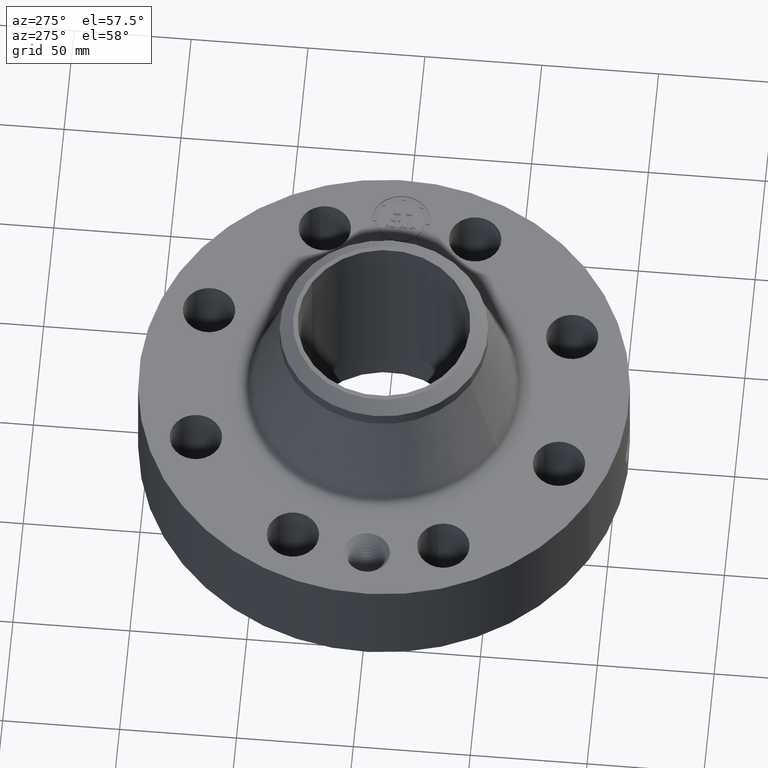
[diagram: clean part render]
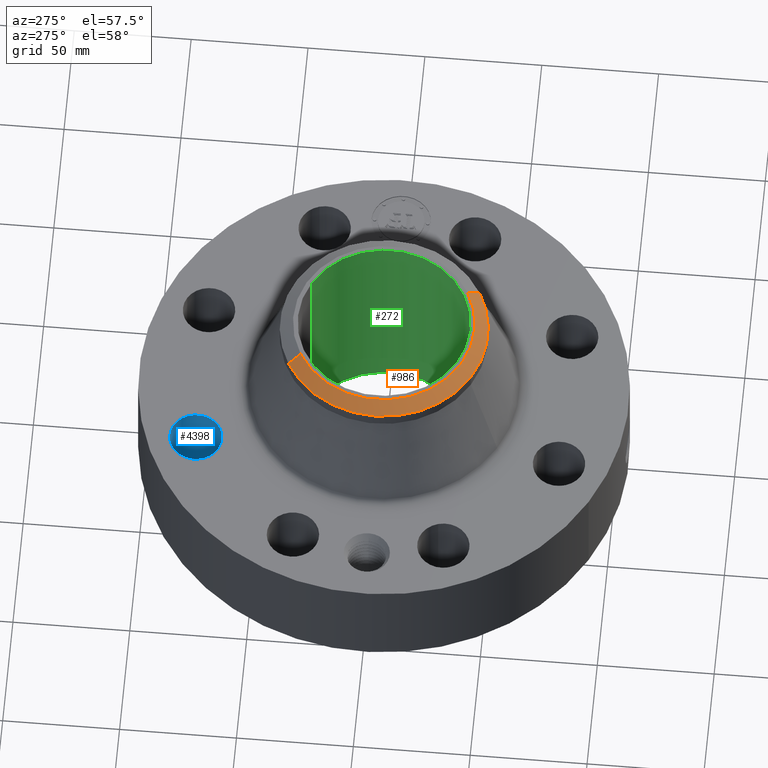
[diagram: same view with three faces highlighted in distinct colors, each labeled with its STEP entity id]
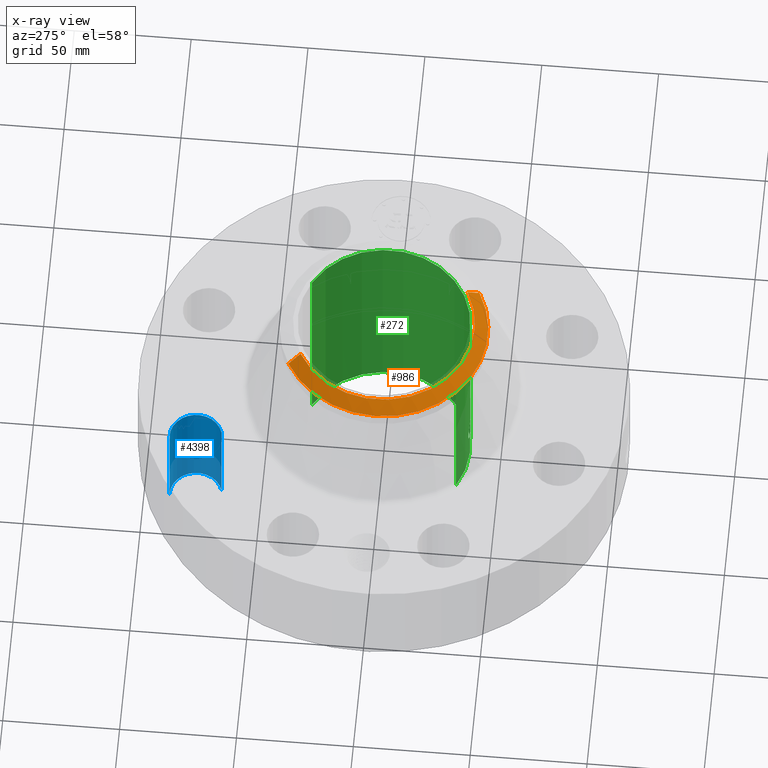
[diagram: x-ray of the same camera — body ghosted, the three highlighted faces saturated]
A machine part, auxiliary view with three faces highlighted in distinct colors.
The next image is the same camera in x-ray (body ghosted, the three faces saturated) — at least one of them is partly hidden behind the body in this view.
Their STEP definitions:

[orange] entity #986 — the highlighted conical surface has half-angle 52.5 deg.
#524=AXIS2_PLACEMENT_3D('Circle Axis2P3D',#522,#523,$) ;
#951=AXIS2_PLACEMENT_3D('Cone Axis2P3D',#948,#949,#950) ;
#969=AXIS2_PLACEMENT_3D('Circle Axis2P3D',#967,#968,$) ;
#976=AXIS2_PLACEMENT_3D('Circle Axis2P3D',#974,#975,$) ;
#517=CARTESIAN_POINT('Vertex',(0.732917073389,-1.34159570387,3.81200000002)) ;
#519=CARTESIAN_POINT('Vertex',(-0.732917073389,1.34159570387,3.81200000002)) ;
#522=CARTESIAN_POINT('Axis2P3D Location',(0.,0.,3.81200000002)) ;
#948=CARTESIAN_POINT('Axis2P3D Location',(0.,0.,3.81200000002)) ;
#953=CARTESIAN_POINT('Line Origine',(0.785955882975,-1.43868259359,3.72711067575)) ;
#957=CARTESIAN_POINT('Vertex',(0.838994692561,-1.53576948331,3.64222135149)) ;
#960=CARTESIAN_POINT('Line Origine',(-0.785955882975,1.43868259359,3.72711067575)) ;
#964=CARTESIAN_POINT('Vertex',(-0.838994692561,1.53576948331,3.64222135149)) ;
#967=CARTESIAN_POINT('Axis2P3D Location',(0.,0.,3.64222135149)) ;
#971=CARTESIAN_POINT('Vertex',(-0.838994692561,-1.53576948331,3.64222135149)) ;
#974=CARTESIAN_POINT('Axis2P3D Location',(0.,0.,3.64222135149)) ;
#523=DIRECTION('Axis2P3D Direction',(0.,0.,-0.0393700787402)) ;
#949=DIRECTION('Axis2P3D Direction',(-0.,-0.,-0.0393700787402)) ;
#950=DIRECTION('Axis2P3D XDirection',(-0.0188750212049,0.0345504945626,0.)) ;
#954=DIRECTION('Vector Direction',(0.014974561121,-0.02741075027,-0.023966985394)) ;
#961=DIRECTION('Vector Direction',(-0.014974561121,0.02741075027,-0.023966985394)) ;
#968=DIRECTION('Axis2P3D Direction',(0.,0.,-0.0393700787402)) ;
#975=DIRECTION('Axis2P3D Direction',(0.,0.,-0.0393700787402)) ;
#955=VECTOR('Line Direction',#954,0.0393700787402) ;
#962=VECTOR('Line Direction',#961,0.0393700787402) ;
#980=ORIENTED_EDGE('',*,*,#959,.F.) ;
#981=ORIENTED_EDGE('',*,*,#526,.F.) ;
#982=ORIENTED_EDGE('',*,*,#966,.T.) ;
#983=ORIENTED_EDGE('',*,*,#973,.T.) ;
#984=ORIENTED_EDGE('',*,*,#978,.F.) ;
#986=ADVANCED_FACE('PartBody',(#985),#952,.T.) ;
#525=CIRCLE('generated circle',#524,1.52874015749) ;
#970=CIRCLE('generated circle',#969,1.75000000001) ;
#977=CIRCLE('generated circle',#976,1.75000000001) ;
#952=CONICAL_SURFACE('Cone',#951,1.52874015749,0.916297857297) ;
#526=EDGE_CURVE('',#520,#518,#525,.F.) ;
#959=EDGE_CURVE('',#518,#958,#956,.T.) ;
#966=EDGE_CURVE('',#520,#965,#963,.T.) ;
#973=EDGE_CURVE('',#965,#972,#970,.F.) ;
#978=EDGE_CURVE('',#958,#972,#977,.T.) ;
#979=EDGE_LOOP('',(#980,#981,#982,#983,#984)) ;
#985=FACE_OUTER_BOUND('',#979,.T.) ;
#956=LINE('Line',#953,#955) ;
#963=LINE('Line',#960,#962) ;
#518=VERTEX_POINT('',#517) ;
#520=VERTEX_POINT('',#519) ;
#958=VERTEX_POINT('',#957) ;
#965=VERTEX_POINT('',#964) ;
#972=VERTEX_POINT('',#971) ;

[blue] entity #4398 — the highlighted cylindrical surface (edge-blend (fillet) strip) has radius 11.176 mm, axis along (0, 0, -1).
#3048=AXIS2_PLACEMENT_3D('Circle Axis2P3D',#3046,#3047,$) ;
#4359=AXIS2_PLACEMENT_3D('Cylinder Axis2P3D',#4356,#4357,#4358) ;
#4389=AXIS2_PLACEMENT_3D('Circle Axis2P3D',#4387,#4388,$) ;
#3046=CARTESIAN_POINT('Axis2P3D Location',(-1.26668216113,3.05804125262,1.81200000001)) ;
#3050=CARTESIAN_POINT('Vertex',(-1.39055955484,3.48024308982,1.81200000001)) ;
#3052=CARTESIAN_POINT('Vertex',(-1.14280476743,2.63583941543,1.81200000001)) ;
#4356=CARTESIAN_POINT('Axis2P3D Location',(-1.26668216113,3.05804125262,1.80806299213)) ;
#4361=CARTESIAN_POINT('Line Origine',(-1.14280476743,2.63583941543,0.906000000004)) ;
#4365=CARTESIAN_POINT('Vertex',(-1.14280476743,2.63583941543,0.)) ;
#4372=CARTESIAN_POINT('Vertex',(-1.39055955484,3.48024308982,0.)) ;
#4375=CARTESIAN_POINT('Line Origine',(-1.39055955484,3.48024308982,0.906000000004)) ;
#4387=CARTESIAN_POINT('Axis2P3D Location',(-1.26668216113,3.05804125262,0.)) ;
#3047=DIRECTION('Axis2P3D Direction',(0.,0.,-0.0393700787402)) ;
#4357=DIRECTION('Axis2P3D Direction',(0.,0.,-0.0393700787402)) ;
#4358=DIRECTION('Axis2P3D XDirection',(-0.0110842335096,0.0377775444876,0.)) ;
#4362=DIRECTION('Vector Direction',(0.,0.,-0.0393700787402)) ;
#4376=DIRECTION('Vector Direction',(0.,0.,-0.0393700787402)) ;
#4388=DIRECTION('Axis2P3D Direction',(0.,0.,-0.0393700787402)) ;
#4363=VECTOR('Line Direction',#4362,0.0393700787402) ;
#4377=VECTOR('Line Direction',#4376,0.0393700787402) ;
#4393=ORIENTED_EDGE('',*,*,#4379,.F.) ;
#4394=ORIENTED_EDGE('',*,*,#4391,.T.) ;
#4395=ORIENTED_EDGE('',*,*,#4367,.T.) ;
#4396=ORIENTED_EDGE('',*,*,#3054,.F.) ;
#4398=ADVANCED_FACE('PartBody',(#4397),#4360,.F.) ;
#3049=CIRCLE('generated circle',#3048,0.440000000002) ;
#4390=CIRCLE('generated circle',#4389,0.440000000002) ;
#4360=CYLINDRICAL_SURFACE('generated cylinder',#4359,0.440000000002) ;
#3054=EDGE_CURVE('',#3051,#3053,#3049,.T.) ;
#4367=EDGE_CURVE('',#4366,#3053,#4364,.F.) ;
#4379=EDGE_CURVE('',#4373,#3051,#4378,.F.) ;
#4391=EDGE_CURVE('',#4373,#4366,#4390,.T.) ;
#4392=EDGE_LOOP('',(#4393,#4394,#4395,#4396)) ;
#4397=FACE_OUTER_BOUND('',#4392,.T.) ;
#4364=LINE('Line',#4361,#4363) ;
#4378=LINE('Line',#4375,#4377) ;
#3051=VERTEX_POINT('',#3050) ;
#3053=VERTEX_POINT('',#3052) ;
#4366=VERTEX_POINT('',#4365) ;
#4373=VERTEX_POINT('',#4372) ;

[green] entity #272 — the highlighted cylindrical surface (partial cylindrical patch) has radius 36.83 mm, axis along (0, 0, -1).
#232=AXIS2_PLACEMENT_3D('Cylinder Axis2P3D',#229,#230,#231) ;
#236=AXIS2_PLACEMENT_3D('Circle Axis2P3D',#234,#235,$) ;
#252=AXIS2_PLACEMENT_3D('Circle Axis2P3D',#250,#251,$) ;
#81=CARTESIAN_POINT('Control Point',(0.164546730355,-1.44063332377,0.660107711514)) ;
#82=CARTESIAN_POINT('Control Point',(0.153731070917,-1.44186867031,0.640309779711)) ;
#83=CARTESIAN_POINT('Control Point',(0.139944062613,-1.44334057186,0.622149863834)) ;
#84=CARTESIAN_POINT('Control Point',(0.12351022085,-1.44489924183,0.606210656527)) ;
#85=CARTESIAN_POINT('Control Point',(0.0771457999691,-1.44849158983,0.573196886421)) ;
#86=CARTESIAN_POINT('Control Point',(0.0211415929518,-1.45046277825,0.559002229905)) ;
#87=CARTESIAN_POINT('Control Point',(-0.0138878046291,-1.45055905133,0.558336349551)) ;
#88=CARTESIAN_POINT('Control Point',(-0.0704179716289,-1.44885595419,0.570406316135)) ;
#89=CARTESIAN_POINT('Control Point',(-0.118016274521,-1.4453687748,0.601663420161)) ;
#90=CARTESIAN_POINT('Control Point',(-0.135050970337,-1.44381724885,0.616987425155)) ;
#91=CARTESIAN_POINT('Control Point',(-0.174424580989,-1.43973531707,0.665004019663)) ;
#92=CARTESIAN_POINT('Control Point',(-0.19222728289,-1.43719598434,0.725976487032)) ;
#93=CARTESIAN_POINT('Control Point',(-0.192994747,-1.43707884691,0.766812208901)) ;
#94=CARTESIAN_POINT('Control Point',(-0.183180576886,-1.43850499696,0.805783261209)) ;
#95=CARTESIAN_POINT('Control Point',(-0.164546730355,-1.44063332377,0.839892288492)) ;
#96=CARTESIAN_POINT('Vertex',(0.164546730355,-1.44063332377,0.660107711514)) ;
#98=CARTESIAN_POINT('Vertex',(-0.164546730355,-1.44063332377,0.839892288492)) ;
#206=CARTESIAN_POINT('Control Point',(-0.164546730355,-1.44063332377,0.839892288492)) ;
#207=CARTESIAN_POINT('Control Point',(-0.153731070915,-1.44186867031,0.859690220299)) ;
#208=CARTESIAN_POINT('Control Point',(-0.139944062607,-1.44334057186,0.877850136179)) ;
#209=CARTESIAN_POINT('Control Point',(-0.123510220856,-1.44489924183,0.893789343474)) ;
#210=CARTESIAN_POINT('Control Point',(-0.0771457999748,-1.44849158983,0.926803113582)) ;
#211=CARTESIAN_POINT('Control Point',(-0.0211415929558,-1.45046277824,0.940997770099)) ;
#212=CARTESIAN_POINT('Control Point',(0.013887804635,-1.45055905133,0.941663650454)) ;
#213=CARTESIAN_POINT('Control Point',(0.0704179716278,-1.44885595418,0.92959368387)) ;
#214=CARTESIAN_POINT('Control Point',(0.118016274515,-1.4453687748,0.898336579849)) ;
#215=CARTESIAN_POINT('Control Point',(0.135050970343,-1.44381724885,0.883012574844)) ;
#216=CARTESIAN_POINT('Control Point',(0.174424580992,-1.43973531707,0.834995980336)) ;
#217=CARTESIAN_POINT('Control Point',(0.192227282892,-1.43719598434,0.774023512967)) ;
#218=CARTESIAN_POINT('Control Point',(0.192994747001,-1.43707884691,0.733187791111)) ;
#219=CARTESIAN_POINT('Control Point',(0.183180576887,-1.43850499696,0.694216738799)) ;
#220=CARTESIAN_POINT('Control Point',(0.164546730355,-1.44063332377,0.660107711514)) ;
#229=CARTESIAN_POINT('Axis2P3D Location',(0.,0.,1.90600000001)) ;
#234=CARTESIAN_POINT('Axis2P3D Location',(0.,0.,3.81200000002)) ;
#238=CARTESIAN_POINT('Vertex',(0.695167030979,1.27249471475,3.81200000002)) ;
#240=CARTESIAN_POINT('Vertex',(-0.695167030979,-1.27249471475,3.81200000002)) ;
#243=CARTESIAN_POINT('Line Origine',(0.695167030979,1.27249471475,1.90600000001)) ;
#247=CARTESIAN_POINT('Vertex',(0.695167030979,1.27249471475,-7.55301333288E-015)) ;
#250=CARTESIAN_POINT('Axis2P3D Location',(0.,0.,-7.83275456743E-015)) ;
#254=CARTESIAN_POINT('Vertex',(-0.695167030979,-1.27249471475,-7.55301333288E-015)) ;
#257=CARTESIAN_POINT('Line Origine',(-0.695167030979,-1.27249471475,1.90600000001)) ;
#230=DIRECTION('Axis2P3D Direction',(0.,0.,-0.0393700787402)) ;
#231=DIRECTION('Axis2P3D XDirection',(-0.0188750212049,-0.0345504945626,0.)) ;
#235=DIRECTION('Axis2P3D Direction',(0.,0.,-0.0393700787402)) ;
#244=DIRECTION('Vector Direction',(0.,0.,-0.0393700787402)) ;
#251=DIRECTION('Axis2P3D Direction',(0.,0.,-0.0393700787402)) ;
#258=DIRECTION('Vector Direction',(0.,0.,-0.0393700787402)) ;
#245=VECTOR('Line Direction',#244,0.0393700787402) ;
#259=VECTOR('Line Direction',#258,0.0393700787402) ;
#263=ORIENTED_EDGE('',*,*,#242,.F.) ;
#264=ORIENTED_EDGE('',*,*,#249,.T.) ;
#265=ORIENTED_EDGE('',*,*,#256,.T.) ;
#266=ORIENTED_EDGE('',*,*,#261,.F.) ;
#269=ORIENTED_EDGE('',*,*,#100,.F.) ;
#270=ORIENTED_EDGE('',*,*,#221,.F.) ;
#271=FACE_BOUND('',#268,.T.) ;
#272=ADVANCED_FACE('PartBody',(#267,#271),#233,.F.) ;
#80=B_SPLINE_CURVE_WITH_KNOTS('',5,(#81,#82,#83,#84,#85,#86,#87,#88,#89,#90,#91,#92,#93,#94,#95),.UNSPECIFIED.,.F.,.U.,(6,3,3,3,6),(0.,4.05789415,10.1286634855,14.1897420031,21.1809178313),.UNSPECIFIED.) ;
#205=B_SPLINE_CURVE_WITH_KNOTS('',5,(#206,#207,#208,#209,#210,#211,#212,#213,#214,#215,#216,#217,#218,#219,#220),.UNSPECIFIED.,.F.,.U.,(6,3,3,3,6),(0.,4.05789415079,10.1286634858,14.1897420027,21.1809178314),.UNSPECIFIED.) ;
#237=CIRCLE('generated circle',#236,1.45000000001) ;
#253=CIRCLE('generated circle',#252,1.45000000001) ;
#233=CYLINDRICAL_SURFACE('generated cylinder',#232,1.45000000001) ;
#100=EDGE_CURVE('',#97,#99,#80,.T.) ;
#221=EDGE_CURVE('',#99,#97,#205,.T.) ;
#242=EDGE_CURVE('',#239,#241,#237,.T.) ;
#249=EDGE_CURVE('',#239,#248,#246,.T.) ;
#256=EDGE_CURVE('',#248,#255,#253,.T.) ;
#261=EDGE_CURVE('',#241,#255,#260,.T.) ;
#262=EDGE_LOOP('',(#263,#264,#265,#266)) ;
#268=EDGE_LOOP('',(#269,#270)) ;
#267=FACE_OUTER_BOUND('',#262,.T.) ;
#246=LINE('Line',#243,#245) ;
#260=LINE('Line',#257,#259) ;
#97=VERTEX_POINT('',#96) ;
#99=VERTEX_POINT('',#98) ;
#239=VERTEX_POINT('',#238) ;
#241=VERTEX_POINT('',#240) ;
#248=VERTEX_POINT('',#247) ;
#255=VERTEX_POINT('',#254) ;